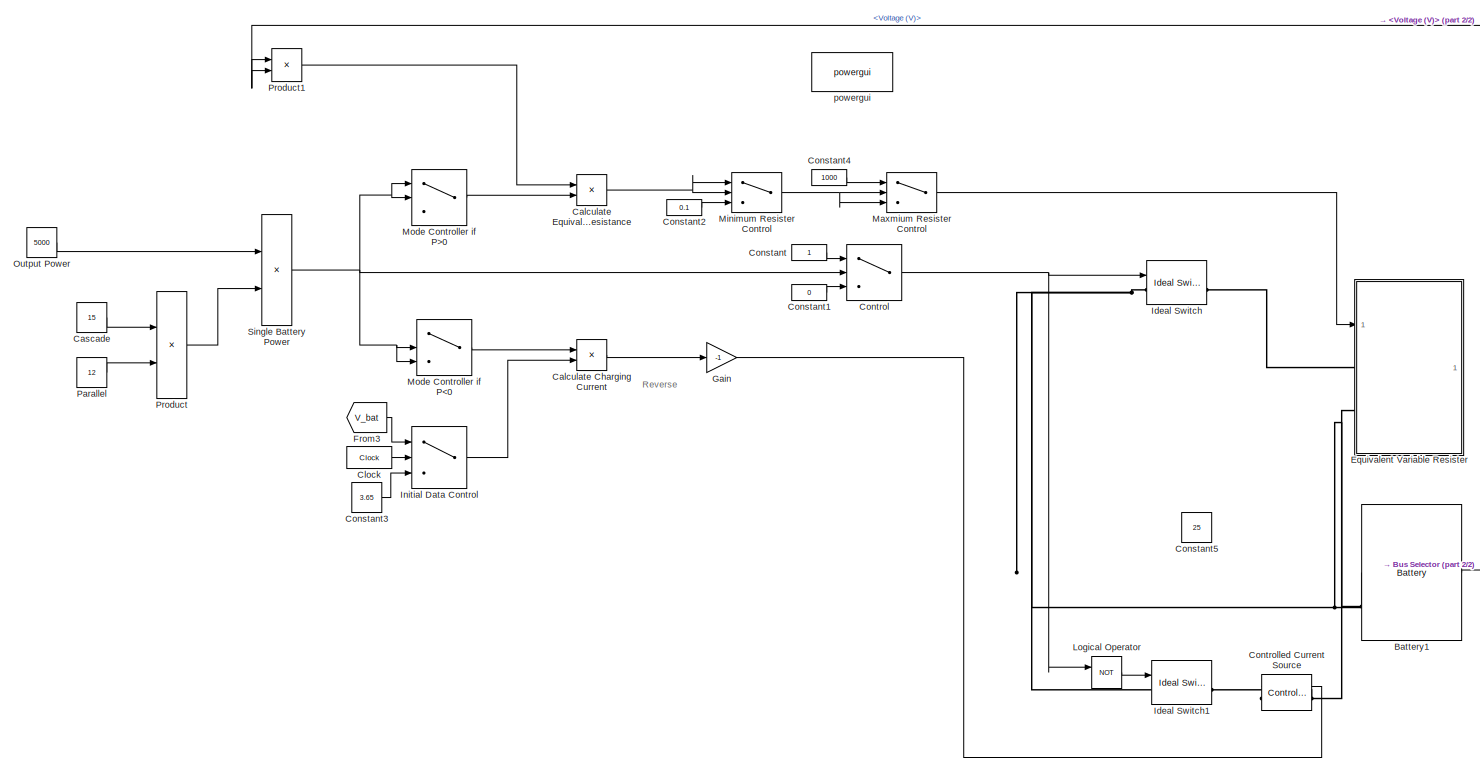
[diagram: root canvas - part 1/2, most of the canvas]
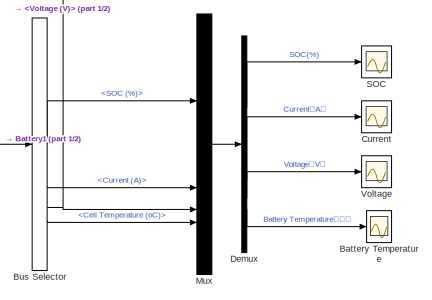
[diagram: root canvas - part 2/2, bottom right region]
MODEL slx_57ac3e7c74e7
KIND model
CONFIG AbsTol = auto
CONFIG EnableMultiTasking = off
CONFIG FixedStep = auto
CONFIG MaxStep = auto
CONFIG MinStep = auto
CONFIG RelTol = 1e-3
CONFIG SampleTimeConstraint = Unconstrained
CONFIG SolverName = VariableStepAuto
CONFIG StartTime = 0.0
CONFIG StopTime = 10.0
BLOCK [Scope] Battery Temperature
  Floating = off
  NumInputPorts = 1
  ScopeSpecificationString = Simulink.scopes.TimeScopeBlockCfg('CurrentConfiguration', extmgr.ConfigurationSet(extmgr.Configuration('Core','General UI',true),extmgr.Configuration('Core','Source UI',true),extmgr.Configuration('Sources','WiredSimulink',true,'DataLoggingVariableName','ScopeData1'),extmgr.Configuration('Visuals','Time Domain',true,'SerializedDisplays',{struct('MinYLimReal','-249407.42064','MaxYLimReal','2244866.7...<+1528ch>
BLOCK [Reference] Battery1  REF=spsBatteryLib/Battery
  LibrarySourceBlock = electricdrivelib/Extra Sources/Battery
  SourceBlock = spsBatteryLib/Battery
  SourceType = Battery
BLOCK [BusSelector] Bus Selector
  OutputSignals = SOC (%),Current (A),Voltage (V),Cell Temperature (oC)
BLOCK [Product] Calculate Charging Current
  Inputs = */
BLOCK [Product] Calculate Equivalent Resistance
  Inputs = */
BLOCK [Constant] Cascade
  Value = 15
  VectorParams1D = off
BLOCK [Clock] Clock
  DisplayTime = on
BLOCK [Constant] Constant
BLOCK [Constant] Constant1
  Value = 0
BLOCK [Constant] Constant2
  Value = 0.1
BLOCK [Constant] Constant3
  Value = 3.65
BLOCK [Constant] Constant4
  Value = 1000
BLOCK [Constant] Constant5
  Value = 25
BLOCK [Switch] Control
  InputSameDT = off
  SaturateOnIntegerOverflow = off
BLOCK [Reference] Controlled Current Source  REF=spsControlledCurrentSourceLib/Controlled Current Source
  LibrarySourceBlock = sps_lib/Sources/Controlled Current Source
  NameLocation = top
  SourceBlock = spsControlledCurrentSourceLib/Controlled Current Source
  SourceType = Controlled Current Source
BLOCK [Scope] Current
  Floating = off
  NumInputPorts = 1
  ScopeSpecificationString = Simulink.scopes.TimeScopeBlockCfg('CurrentConfiguration', extmgr.ConfigurationSet(extmgr.Configuration('Core','General UI',true),extmgr.Configuration('Core','Source UI',true),extmgr.Configuration('Sources','WiredSimulink',true,'DataLoggingVariableName','ScopeData2'),extmgr.Configuration('Visuals','Time Domain',true,'SerializedDisplays',{struct('MinYLimReal','-0.59427','MaxYLimReal','5.34879','YLab...<+1532ch>
BLOCK [Demux] Demux
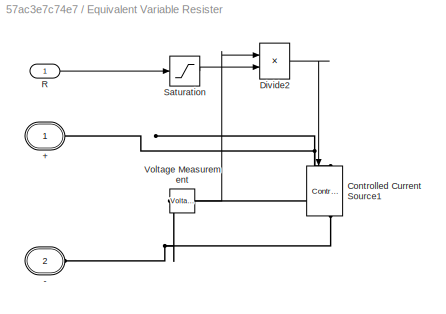
BLOCK [SubSystem] Equivalent Variable Resister
BLOCK [PMIOPort] Equivalent Variable Resister/+
  Side = Left
  Tag = PMCPort
BLOCK [PMIOPort] Equivalent Variable Resister/-
  Port = 2
  Side = Left
  Tag = PMCPort
BLOCK [Reference] Equivalent Variable Resister/Controlled Current Source1  REF=spsControlledCurrentSourceLib/Controlled Current Source
  LibrarySourceBlock = sps_lib/Sources/Controlled Current Source
  NameLocation = left
  SourceBlock = spsControlledCurrentSourceLib/Controlled Current Source
  SourceType = Controlled Current Source
BLOCK [Product] Equivalent Variable Resister/Divide2
  Inputs = */
BLOCK [Inport] Equivalent Variable Resister/R
BLOCK [Saturate] Equivalent Variable Resister/Saturation
  LowerLimit = 0.1
  UpperLimit = 1000
BLOCK [Reference] Equivalent Variable Resister/Voltage Measurement  REF=spsVoltageMeasurementLib/Voltage Measurement
  LibrarySourceBlock = sps_lib/Sensors and Measurements/Voltage Measurement
  SourceBlock = spsVoltageMeasurementLib/Voltage Measurement
  SourceType = Voltage Measurement
  UserDataPersistent = on
BLOCK [From] From3
  GotoTag = V_bat
BLOCK [Gain] Gain
  Gain = -1
BLOCK [Reference] Ideal Switch  REF=spsIdealSwitchLib/Ideal Switch
  LibrarySourceBlock = sps_lib/Power Electronics/Ideal Switch
  SourceBlock = spsIdealSwitchLib/Ideal Switch
  SourceType = Ideal Switch
BLOCK [Reference] Ideal Switch1  REF=spsIdealSwitchLib/Ideal Switch
  LibrarySourceBlock = sps_lib/Power Electronics/Ideal Switch
  SourceBlock = spsIdealSwitchLib/Ideal Switch
  SourceType = Ideal Switch
BLOCK [Switch] Initial Data Control
  Criteria = u2 > Threshold
  InputSameDT = off
  SaturateOnIntegerOverflow = off
BLOCK [Logic] Logical Operator
  AllPortsSameDT = off
  Operator = NOT
  OutDataTypeStr = boolean
BLOCK [Switch] Maxmium Resister Control
  Criteria = u2 > Threshold
  InputSameDT = off
  SaturateOnIntegerOverflow = off
  Threshold = 1000
BLOCK [Switch] Minimum Resister Control
  Criteria = u2 > Threshold
  InputSameDT = off
  SaturateOnIntegerOverflow = off
  Threshold = 0.1
BLOCK [Switch] Mode Controller if P<0
  InputSameDT = off
  SaturateOnIntegerOverflow = off
BLOCK [Switch] Mode Controller if P>0
  InputSameDT = off
  SaturateOnIntegerOverflow = off
BLOCK [Mux] Mux
  DisplayOption = bar
BLOCK [Constant] Output Power
  Value = 5000
BLOCK [Constant] Parallel
  Value = 12
BLOCK [Product] Product
BLOCK [Product] Product1
BLOCK [Scope] SOC
  Floating = off
  NumInputPorts = 1
  ScopeSpecificationString = Simulink.scopes.TimeScopeBlockCfg('CurrentConfiguration', extmgr.ConfigurationSet(extmgr.Configuration('Core','General UI',true),extmgr.Configuration('Core','Source UI',true),extmgr.Configuration('Sources','WiredSimulink',true,'DataLoggingVariableName','ScopeData3'),extmgr.Configuration('Visuals','Time Domain',true,'SerializedDisplays',{struct('MinYLimReal','-12.5','MaxYLimReal','112.5','YLabelRea...<+1511ch>
BLOCK [Product] Single Battery Power
  Inputs = */
BLOCK [Scope] Voltage
  Floating = off
  NumInputPorts = 1
  ScopeSpecificationString = Simulink.scopes.TimeScopeBlockCfg('CurrentConfiguration', extmgr.ConfigurationSet(extmgr.Configuration('Core','General UI',true),extmgr.Configuration('Core','Source UI',true),extmgr.Configuration('Sources','WiredSimulink',true),extmgr.Configuration('Visuals','Time Domain',true,'SerializedDisplays',{struct('MinYLimReal','5.98564','MaxYLimReal','10.32316','YLabelReal','','MinYLimMag','5.98564','MaxY...<+1493ch>
BLOCK [Reference] powergui  REF=sps_lib/powergui
  LibrarySourceBlock = sps_lib/powergui
  Priority = 1
  SourceBlock = sps_lib/powergui
  SourceType = PSB option menu block
ANNOTATION (root): Reverse
LINE Battery1:1 -> Bus Selector:1
LINE Bus Selector:1 -> Mux:1
LINE Bus Selector:2 -> Mux:2
NET Bus Selector:3 -> Mux:3, Product1:1, Product1:2
LINE Bus Selector:4 -> Mux:4
LINE Calculate Charging Current:1 -> Gain:1
NET Calculate Equivalent Resistance:1 -> Minimum Resister Control:1, Minimum Resister Control:2
LINE Cascade:1 -> Product:1
LINE Clock:1 -> Initial Data Control:2
LINE Constant1:1 -> Control:3
LINE Constant2:1 -> Minimum Resister Control:3
LINE Constant3:1 -> Initial Data Control:3
LINE Constant4:1 -> Maxmium Resister Control:1
LINE Constant:1 -> Control:1
NET Control:1 -> Ideal Switch:1, Logical Operator:1
LINE Demux:1 -> SOC:1
LINE Demux:2 -> Current:1
LINE Demux:3 -> Voltage:1
LINE Demux:4 -> Battery Temperature:1
LINE Equivalent Variable Resister/Divide2:1 -> Equivalent Variable Resister/Controlled Current Source1:1
LINE Equivalent Variable Resister/R:1 -> Equivalent Variable Resister/Saturation:1
LINE Equivalent Variable Resister/Saturation:1 -> Equivalent Variable Resister/Divide2:2
LINE Equivalent Variable Resister/Voltage Measurement:1 -> Equivalent Variable Resister/Divide2:1
LINE From3:1 -> Initial Data Control:1
LINE Gain:1 -> Controlled Current Source:1
LINE Initial Data Control:1 -> Calculate Charging Current:2
LINE Logical Operator:1 -> Ideal Switch1:1
LINE Maxmium Resister Control:1 -> Equivalent Variable Resister:1
NET Minimum Resister Control:1 -> Maxmium Resister Control:2, Maxmium Resister Control:3
LINE Mode Controller if P<0:1 -> Calculate Charging Current:1
LINE Mode Controller if P>0:1 -> Calculate Equivalent Resistance:2
LINE Mux:1 -> Demux:1
LINE Output Power:1 -> Single Battery Power:1
LINE Parallel:1 -> Product:2
LINE Product1:1 -> Calculate Equivalent Resistance:1
LINE Product:1 -> Single Battery Power:2
NET Single Battery Power:1 -> Control:2, Mode Controller if P<0:2, Mode Controller if P<0:3, Mode Controller if P>0:1, Mode Controller if P>0:2
PNET net1: Battery1:LConn1 -- Ideal Switch1:LConn1 -- Ideal Switch:LConn1
PNET net2: Battery1:LConn2 -- Controlled Current Source:LConn1 -- Equivalent Variable Resister:LConn2
PLINE Controlled Current Source:RConn1 -- Ideal Switch1:RConn1
PNET net3: Equivalent Variable Resister/+:RConn1 -- Equivalent Variable Resister/Controlled Current Source1:LConn1 -- Equivalent Variable Resister/Voltage Measurement:LConn1
PNET net4: Equivalent Variable Resister/-:RConn1 -- Equivalent Variable Resister/Controlled Current Source1:RConn1 -- Equivalent Variable Resister/Voltage Measurement:LConn2
PLINE Equivalent Variable Resister:LConn1 -- Ideal Switch:RConn1
note: NET lines group one-source signal fan-out (src -> all destinations, sorted); 1:1 wires keep LINE; PNET lines group multi-terminal physical nets as a canonical sorted terminal list (undirected conserving connections); 2-terminal nets keep the pairwise PLINE form
